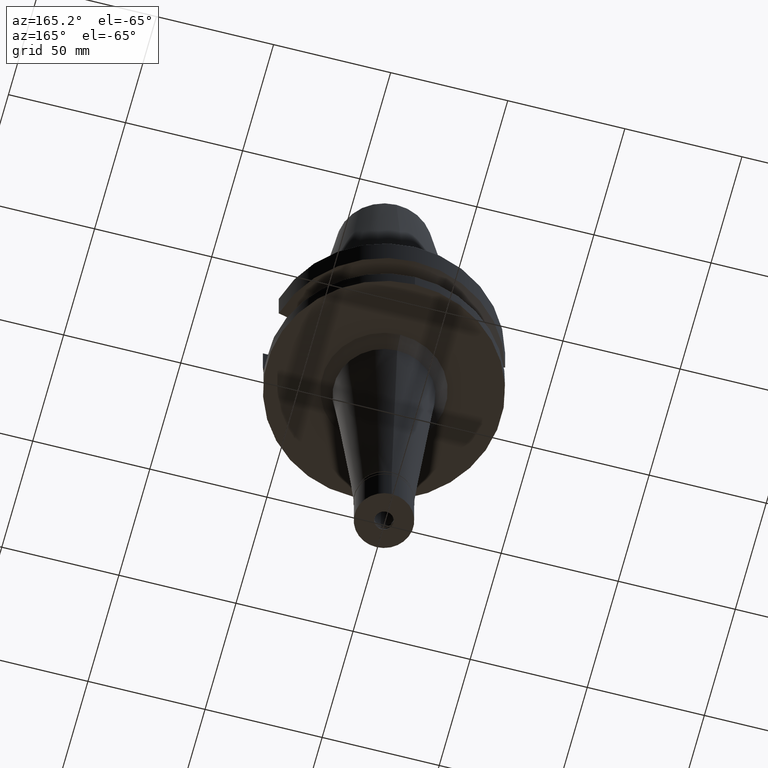
[diagram: clean part render]
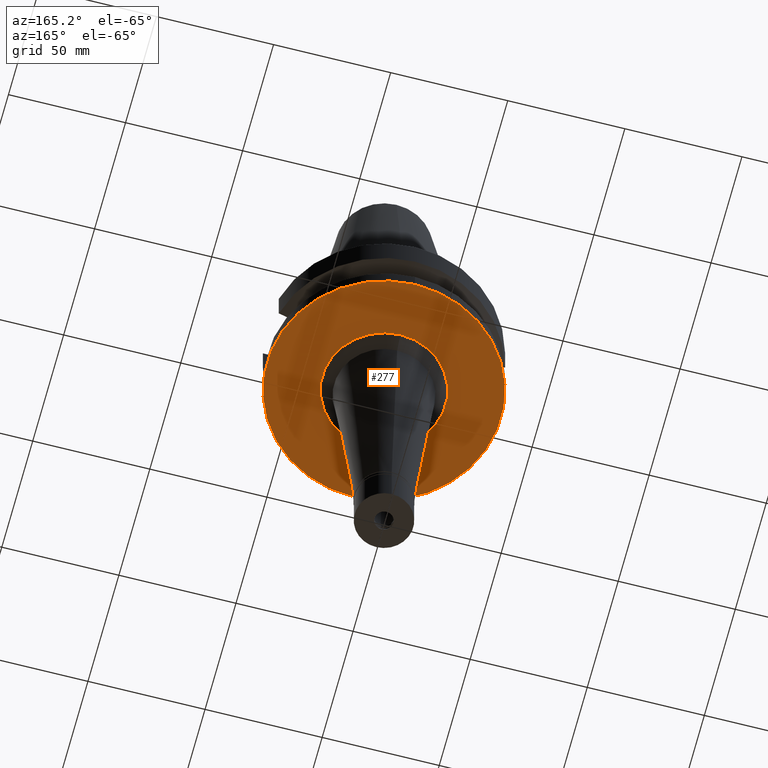
[diagram: same view with one face highlighted and labeled with its STEP entity id]
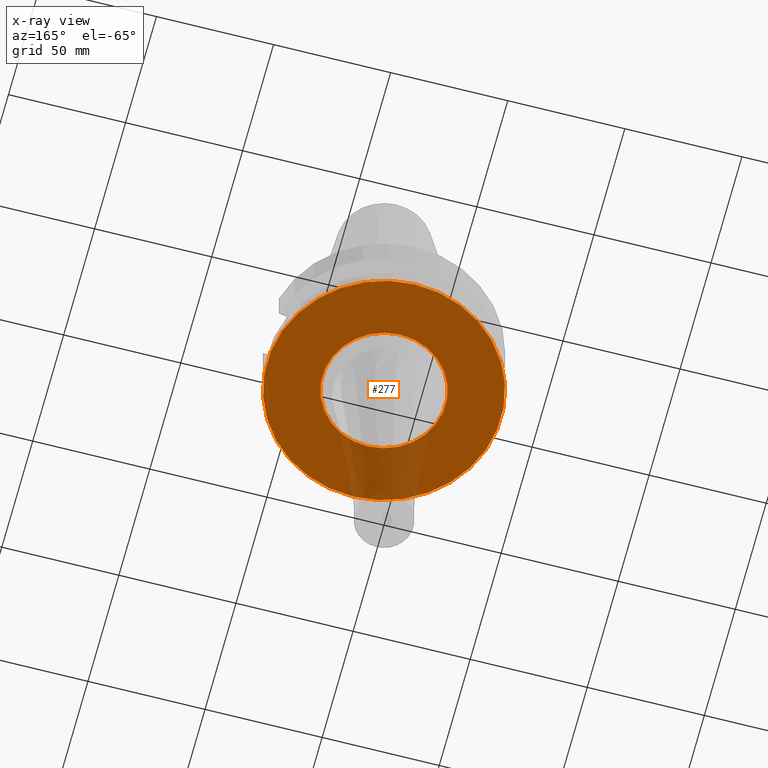
[diagram: x-ray of the same camera — body ghosted, the highlighted face saturated]
A machine part, auxiliary view. The second image highlights one B-rep face of the part: STEP entity #277.
The next image is the same camera in x-ray: the body ghosted, the highlighted face saturated — about 13% of this face is hidden behind the body in this view.
In plain terms, the highlighted planar face has unit normal (0, 0, -1).
Its self-contained STEP definition (entity closure, byte-faithful):
#5 = DIRECTION ( 'NONE',  ( 0.0000000000000000000, 1.000000000000000000, 0.0000000000000000000 ) ) ;
#32 = ORIENTED_EDGE ( 'NONE', *, *, #2819, .F. ) ;
#98 = CIRCLE ( 'NONE', #2381, 26.31010841706000036 ) ;
#277 = ADVANCED_FACE ( 'NONE', ( #1588, #2041 ), #2299, .T. ) ;
#312 = CARTESIAN_POINT ( 'NONE',  ( 0.0000000000000000000, 0.0000000000000000000, -38.00000000000000000 ) ) ;
#378 = EDGE_LOOP ( 'NONE', ( #32, #2124 ) ) ;
#449 = CIRCLE ( 'NONE', #1452, 26.31010841706000036 ) ;
#450 = DIRECTION ( 'NONE',  ( 0.0000000000000000000, 1.000000000000000000, 0.0000000000000000000 ) ) ;
#478 = VERTEX_POINT ( 'NONE', #2962 ) ;
#537 = CARTESIAN_POINT ( 'NONE',  ( 0.0000000000000000000, 0.0000000000000000000, -38.00000000000000000 ) ) ;
#933 = DIRECTION ( 'NONE',  ( 0.0000000000000000000, 0.0000000000000000000, 1.000000000000000000 ) ) ;
#1011 = DIRECTION ( 'NONE',  ( 0.0000000000000000000, -1.000000000000000000, 0.0000000000000000000 ) ) ;
#1069 = DIRECTION ( 'NONE',  ( 0.0000000000000000000, -1.000000000000000000, 0.0000000000000000000 ) ) ;
#1183 = AXIS2_PLACEMENT_3D ( 'NONE', #1480, #933, #450 ) ;
#1268 = VERTEX_POINT ( 'NONE', #1491 ) ;
#1319 = DIRECTION ( 'NONE',  ( 0.0000000000000000000, 0.0000000000000000000, -1.000000000000000000 ) ) ;
#1440 = CARTESIAN_POINT ( 'NONE',  ( 0.0000000000000000000, 26.31010841706000036, -38.00000000000000000 ) ) ;
#1452 = AXIS2_PLACEMENT_3D ( 'NONE', #2958, #1458, #5 ) ;
#1458 = DIRECTION ( 'NONE',  ( 0.0000000000000000000, 0.0000000000000000000, -1.000000000000000000 ) ) ;
#1480 = CARTESIAN_POINT ( 'NONE',  ( 0.0000000000000000000, 2.630908718607999774E-14, -38.00000000000000000 ) ) ;
#1491 = CARTESIAN_POINT ( 'NONE',  ( 0.0000000000000000000, -26.31010841706000036, -38.00000000000000000 ) ) ;
#1549 = EDGE_LOOP ( 'NONE', ( #2567, #2471 ) ) ;
#1588 = FACE_OUTER_BOUND ( 'NONE', #1549, .T. ) ;
#1605 = VERTEX_POINT ( 'NONE', #2681 ) ;
#1755 = DIRECTION ( 'NONE',  ( 0.0000000000000000000, 0.0000000000000000000, -1.000000000000000000 ) ) ;
#1776 = CARTESIAN_POINT ( 'NONE',  ( 0.0000000000000000000, 2.630908718607999774E-14, -38.00000000000000000 ) ) ;
#2041 = FACE_BOUND ( 'NONE', #378, .T. ) ;
#2124 = ORIENTED_EDGE ( 'NONE', *, *, #2589, .F. ) ;
#2267 = DIRECTION ( 'NONE',  ( 0.0000000000000000000, 0.0000000000000000000, 1.000000000000000000 ) ) ;
#2299 = PLANE ( 'NONE',  #2805 ) ;
#2369 = AXIS2_PLACEMENT_3D ( 'NONE', #1776, #2267, #1011 ) ;
#2381 = AXIS2_PLACEMENT_3D ( 'NONE', #537, #1755, #3033 ) ;
#2471 = ORIENTED_EDGE ( 'NONE', *, *, #3068, .F. ) ;
#2567 = ORIENTED_EDGE ( 'NONE', *, *, #2868, .F. ) ;
#2569 = CIRCLE ( 'NONE', #2369, 50.00000000000000000 ) ;
#2589 = EDGE_CURVE ( 'NONE', #1268, #2901, #98, .T. ) ;
#2681 = CARTESIAN_POINT ( 'NONE',  ( 0.0000000000000000000, -50.00000000000000000, -38.00000000000000000 ) ) ;
#2805 = AXIS2_PLACEMENT_3D ( 'NONE', #312, #1319, #1069 ) ;
#2819 = EDGE_CURVE ( 'NONE', #2901, #1268, #449, .T. ) ;
#2868 = EDGE_CURVE ( 'NONE', #478, #1605, #2930, .T. ) ;
#2901 = VERTEX_POINT ( 'NONE', #1440 ) ;
#2930 = CIRCLE ( 'NONE', #1183, 50.00000000000000000 ) ;
#2958 = CARTESIAN_POINT ( 'NONE',  ( 0.0000000000000000000, 0.0000000000000000000, -38.00000000000000000 ) ) ;
#2962 = CARTESIAN_POINT ( 'NONE',  ( 0.0000000000000000000, 50.00000000000000000, -38.00000000000000000 ) ) ;
#3033 = DIRECTION ( 'NONE',  ( 0.0000000000000000000, -1.000000000000000000, 0.0000000000000000000 ) ) ;
#3068 = EDGE_CURVE ( 'NONE', #1605, #478, #2569, .T. ) ;